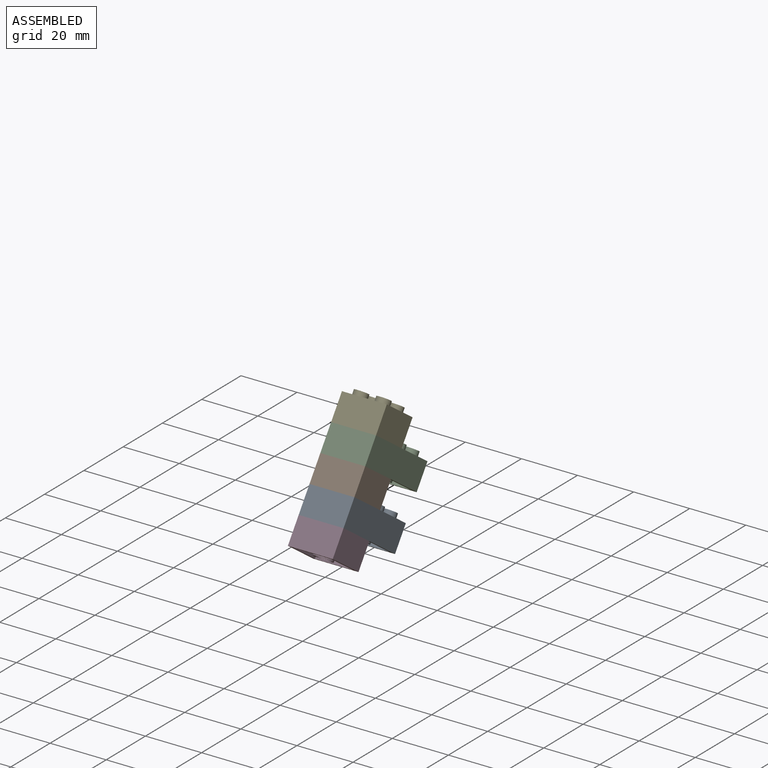
[diagram: assembled view]
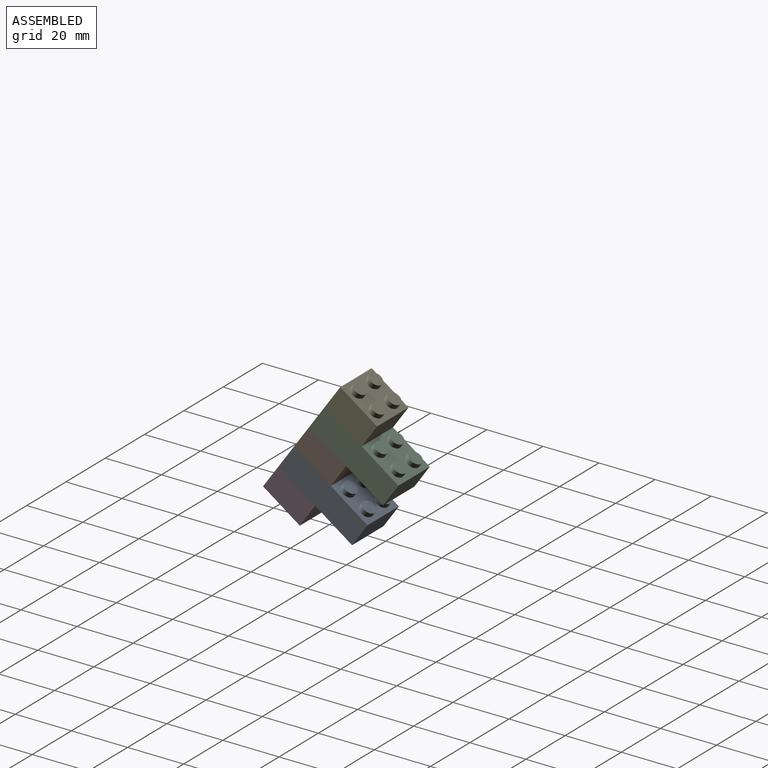
[diagram: assembled view, second angle]
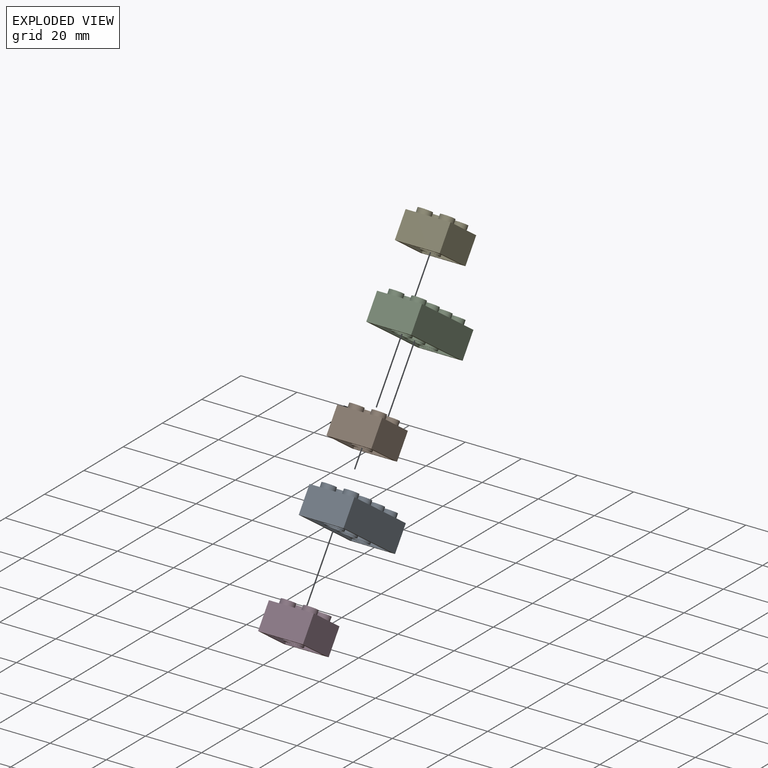
[diagram: exploded view]
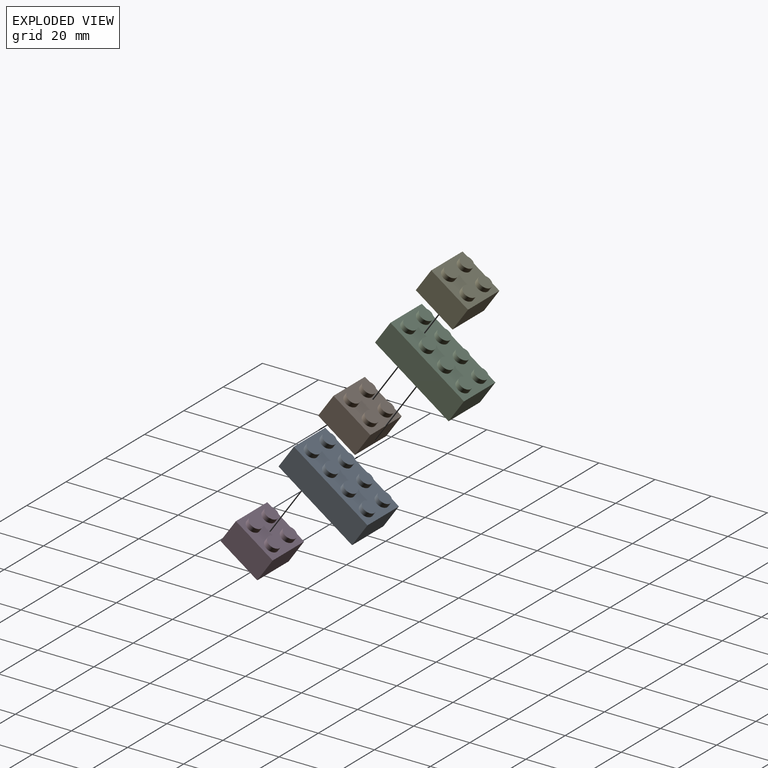
[diagram: exploded view, second angle]
ASSEMBLY  parts=5 mates=4
PART A: 55 faces, bbox 16x32x11.4 mm
  f0: plane 32x16mm, normal (0,0,-1), area 109.4mm2, adj f2,f3,f4,f5,f23,f24,f25,f26
  f1: plane 32x16mm, normal (0,0,1), area 367.2mm2, adj f2,f3,f4,f5,f7,f9,f11,f13
  f2: plane 16x9.6mm, normal (0,-1,0), area 153.6mm2, adj f0,f1,f3,f4
  f3: plane 32x9.6mm, normal (1,0,0), area 307.2mm2, adj f0,f1,f2,f5
  f4: plane 32x9.6mm, normal (-1,0,0), area 307.2mm2, adj f0,f1,f2,f5
  f5: plane 16x9.6mm, normal (0,1,0), area 153.6mm2, adj f0,f1,f3,f4
  f6: plane 4.8x4.8mm, normal (0,0,1), area 18.1mm2, adj f7
  f7: cylinder r=2.4mm len=4.8mm, axis (0,0,-1), area 27.1mm2, adj f1,f6
  f8: plane 4.8x4.8mm, normal (0,0,1), area 18.1mm2, adj f9
  f9: cylinder r=2.4mm len=4.8mm, axis (0,0,-1), area 27.1mm2, adj f1,f8
  f10: plane 4.8x4.8mm, normal (0,0,1), area 18.1mm2, adj f11
  f11: cylinder r=2.4mm len=4.8mm, axis (0,0,-1), area 27.1mm2, adj f1,f10
  f12: plane 4.8x4.8mm, normal (0,0,1), area 18.1mm2, adj f13
  f13: cylinder r=2.4mm len=4.8mm, axis (0,0,-1), area 27.1mm2, adj f1,f12
  f14: plane 4.8x4.8mm, normal (0,0,1), area 18.1mm2, adj f15
  f15: cylinder r=2.4mm len=4.8mm, axis (0,0,-1), area 27.1mm2, adj f1,f14
  f16: plane 4.8x4.8mm, normal (0,0,1), area 18.1mm2, adj f17
  f17: cylinder r=2.4mm len=4.8mm, axis (0,0,-1), area 27.1mm2, adj f1,f16
  f18: plane 4.8x4.8mm, normal (0,0,1), area 18.1mm2, adj f19
  f19: cylinder r=2.4mm len=4.8mm, axis (0,0,-1), area 27.1mm2, adj f1,f18
  f20: plane 4.8x4.8mm, normal (0,0,1), area 18.1mm2, adj f21
  f21: cylinder r=2.4mm len=4.8mm, axis (0,0,-1), area 27.1mm2, adj f1,f20
  f22: plane 29.6x13.6mm, normal (0,0,-1), area 266.8mm2, adj f23,f24,f25,f26,f28,f30,f32,f34
  f23: plane 13.6x8.4mm, normal (0,1,0), area 114.2mm2, adj f0,f22,f24,f25
  f24: plane 29.6x8.4mm, normal (-1,0,0), area 248.6mm2, adj f0,f22,f23,f26
  f25: plane 29.6x8.4mm, normal (1,0,0), area 248.6mm2, adj f0,f22,f23,f26
  f26: plane 13.6x8.4mm, normal (0,-1,0), area 114.2mm2, adj f0,f22,f24,f25
  f27: plane 2.4x2.4mm, normal (0,0,-1), area 4.5mm2, adj f28
  f28: cylinder r=1.2mm len=2.4mm, axis (0,0,-1), area 13.6mm2, adj f22,f27
  f29: plane 2.4x2.4mm, normal (0,0,-1), area 4.5mm2, adj f30
  f30: cylinder r=1.2mm len=2.4mm, axis (0,0,-1), area 13.6mm2, adj f22,f29
  f31: plane 2.4x2.4mm, normal (0,0,-1), area 4.5mm2, adj f32
  f32: cylinder r=1.2mm len=2.4mm, axis (0,0,-1), area 13.6mm2, adj f22,f31
  f33: plane 2.4x2.4mm, normal (0,0,-1), area 4.5mm2, adj f34
  f34: cylinder r=1.2mm len=2.4mm, axis (0,0,-1), area 13.6mm2, adj f22,f33
  f35: plane 2.4x2.4mm, normal (0,0,-1), area 4.5mm2, adj f36
  f36: cylinder r=1.2mm len=2.4mm, axis (0,0,-1), area 13.6mm2, adj f22,f35
  f37: plane 2.4x2.4mm, normal (0,0,-1), area 4.5mm2, adj f38
  f38: cylinder r=1.2mm len=2.4mm, axis (0,0,-1), area 13.6mm2, adj f22,f37
  f39: plane 2.4x2.4mm, normal (0,0,-1), area 4.5mm2, adj f40
  f40: cylinder r=1.2mm len=2.4mm, axis (0,0,-1), area 13.6mm2, adj f22,f39
  f41: plane 2.4x2.4mm, normal (0,0,-1), area 4.5mm2, adj f42
  f42: cylinder r=1.2mm len=2.4mm, axis (0,0,-1), area 13.6mm2, adj f22,f41
  f43: cylinder r=2.65mm len=8.4mm, axis (0,0,-1), area 139.9mm2, adj f45,f46
  f44: cylinder r=3.25mm len=8.4mm, axis (0,0,-1), area 171.5mm2, adj f22,f45
  f45: plane 6.5x6.5mm, normal (0,0,-1), area 11.1mm2, adj f43,f44
  f46: plane 5.3x5.3mm, normal (0,0,-1), area 22.1mm2, adj f43
  f47: cylinder r=2.65mm len=8.4mm, axis (0,0,-1), area 139.9mm2, adj f49,f50
  f48: cylinder r=3.25mm len=8.4mm, axis (0,0,-1), area 171.5mm2, adj f22,f49
  f49: plane 6.5x6.5mm, normal (0,0,-1), area 11.1mm2, adj f47,f48
  f50: plane 5.3x5.3mm, normal (0,0,-1), area 22.1mm2, adj f47
  f51: cylinder r=2.65mm len=8.4mm, axis (0,0,-1), area 139.9mm2, adj f53,f54
  f52: cylinder r=3.25mm len=8.4mm, axis (0,0,-1), area 171.5mm2, adj f22,f53
  f53: plane 6.5x6.5mm, normal (0,0,-1), area 11.1mm2, adj f51,f52
  f54: plane 5.3x5.3mm, normal (0,0,-1), area 22.1mm2, adj f51
PART B: 31 faces, bbox 16x16x11.4 mm
  f0: plane 16x16mm, normal (0,0,-1), area 71mm2, adj f2,f3,f4,f5,f15,f16,f17,f18
  f1: plane 16x16mm, normal (0,0,1), area 183.6mm2, adj f2,f3,f4,f5,f7,f9,f11,f13
  f2: plane 16x9.6mm, normal (0,-1,0), area 153.6mm2, adj f0,f1,f3,f4
  f3: plane 16x9.6mm, normal (1,0,0), area 153.6mm2, adj f0,f1,f2,f5
  f4: plane 16x9.6mm, normal (-1,0,0), area 153.6mm2, adj f0,f1,f2,f5
  f5: plane 16x9.6mm, normal (0,1,0), area 153.6mm2, adj f0,f1,f3,f4
  f6: plane 4.8x4.8mm, normal (0,0,1), area 18.1mm2, adj f7
  f7: cylinder r=2.4mm len=4.8mm, axis (0,0,-1), area 27.1mm2, adj f1,f6
  f8: plane 4.8x4.8mm, normal (0,0,1), area 18.1mm2, adj f9
  f9: cylinder r=2.4mm len=4.8mm, axis (0,0,-1), area 27.1mm2, adj f1,f8
  f10: plane 4.8x4.8mm, normal (0,0,1), area 18.1mm2, adj f11
  f11: cylinder r=2.4mm len=4.8mm, axis (0,0,-1), area 27.1mm2, adj f1,f10
  f12: plane 4.8x4.8mm, normal (0,0,1), area 18.1mm2, adj f13
  f13: cylinder r=2.4mm len=4.8mm, axis (0,0,-1), area 27.1mm2, adj f1,f12
  f14: plane 13.6x13.6mm, normal (0,0,-1), area 133.7mm2, adj f15,f16,f17,f18,f20,f22,f24,f26
  f15: plane 13.6x8.4mm, normal (0,1,0), area 114.2mm2, adj f0,f14,f16,f17
  f16: plane 13.6x8.4mm, normal (-1,0,0), area 114.2mm2, adj f0,f14,f15,f18
  f17: plane 13.6x8.4mm, normal (1,0,0), area 114.2mm2, adj f0,f14,f15,f18
  f18: plane 13.6x8.4mm, normal (0,-1,0), area 114.2mm2, adj f0,f14,f16,f17
  f19: plane 2.4x2.4mm, normal (0,0,-1), area 4.5mm2, adj f20
  f20: cylinder r=1.2mm len=2.4mm, axis (0,0,-1), area 13.6mm2, adj f14,f19
  f21: plane 2.4x2.4mm, normal (0,0,-1), area 4.5mm2, adj f22
  f22: cylinder r=1.2mm len=2.4mm, axis (0,0,-1), area 13.6mm2, adj f14,f21
  f23: plane 2.4x2.4mm, normal (0,0,-1), area 4.5mm2, adj f24
  f24: cylinder r=1.2mm len=2.4mm, axis (0,0,-1), area 13.6mm2, adj f14,f23
  f25: plane 2.4x2.4mm, normal (0,0,-1), area 4.5mm2, adj f26
  f26: cylinder r=1.2mm len=2.4mm, axis (0,0,-1), area 13.6mm2, adj f14,f25
  f27: cylinder r=2.65mm len=8.4mm, axis (0,0,-1), area 139.9mm2, adj f29,f30
  f28: cylinder r=3.25mm len=8.4mm, axis (0,0,-1), area 171.5mm2, adj f14,f29
  f29: plane 6.5x6.5mm, normal (0,0,-1), area 11.1mm2, adj f27,f28
  f30: plane 5.3x5.3mm, normal (0,0,-1), area 22.1mm2, adj f27
PART C: same geometry as A
PART D: same geometry as B
PART E: same geometry as B
PLACE A rot(axis=(-1,0,0),35deg) t=(165.4,113.19,131.43)mm
PLACE B rot(axis=(-1,0,0),35deg) t=(165.4,118.69,139.3)mm
PLACE C rot(axis=(-1,0,0),35deg) t=(165.4,124.2,147.16)mm
PLACE D rot(axis=(-1,0,0),35deg) t=(165.4,107.68,123.57)mm
PLACE E rot(axis=(-1,0,0),35deg) t=(165.4,129.71,155.03)mm
MATE fastened E.f11 <-> C.f15  axis (0,0.57,0.82) through (169.4,132.98,152.73)mm
MATE fastened A.f15 <-> D.f11  axis (0,0.57,0.82) through (169.4,116.46,129.14)mm
MATE fastened C.f15 <-> B.f11  axis (0,0.57,0.82) through (169.4,127.48,144.87)mm
MATE fastened B.f11 <-> A.f15  axis (0,0.57,0.82) through (169.4,121.97,137)mm
